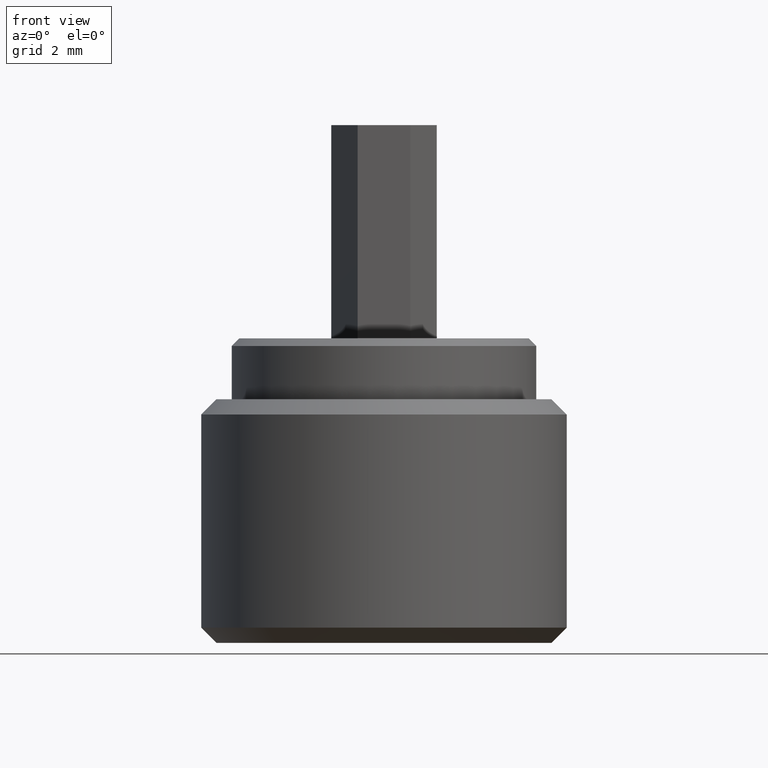
[diagram: clean part render]
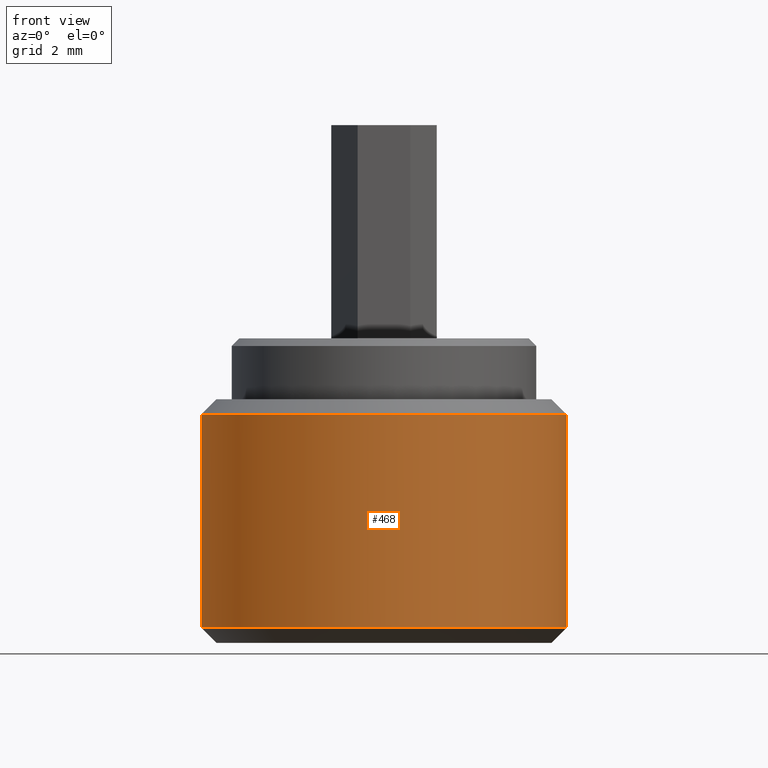
[diagram: same view with one face highlighted and labeled with its STEP entity id]
A machine part, front view. The second image highlights one B-rep face of the part: STEP entity #468.
In plain terms, the highlighted cylindrical surface (partial cylindrical patch) has radius 6 mm, axis along (-0, -0, -1).
Its self-contained STEP definition (entity closure, byte-faithful):
#13 = EDGE_CURVE ( 'NONE', #207, #218, #697, .T. ) ;
#23 = DIRECTION ( 'NONE',  ( -0.000000000000000000, -0.000000000000000000, -1.000000000000000000 ) ) ;
#51 = CARTESIAN_POINT ( 'NONE',  ( 0.000000000000000000, 0.000000000000000000, 0.4999999999999987232 ) ) ;
#84 = EDGE_LOOP ( 'NONE', ( #660, #497, #555, #944 ) ) ;
#161 = DIRECTION ( 'NONE',  ( -0.000000000000000000, -0.000000000000000000, 1.000000000000000000 ) ) ;
#175 = CARTESIAN_POINT ( 'NONE',  ( -6.000000000000000888, 0.000000000000000000, 0.4999999999999987232 ) ) ;
#183 = CARTESIAN_POINT ( 'NONE',  ( 0.000000000000000000, 0.000000000000000000, 7.500000000000000000 ) ) ;
#207 = VERTEX_POINT ( 'NONE', #613 ) ;
#218 = VERTEX_POINT ( 'NONE', #230 ) ;
#230 = CARTESIAN_POINT ( 'NONE',  ( -6.000000000000000888, 0.000000000000000000, 7.500000000000000000 ) ) ;
#233 = LINE ( 'NONE', #367, #509 ) ;
#331 = DIRECTION ( 'NONE',  ( 1.000000000000000000, 0.000000000000000000, 0.000000000000000000 ) ) ;
#367 = CARTESIAN_POINT ( 'NONE',  ( -6.000000000000000888, 0.000000000000000000, 10.00000000000000000 ) ) ;
#380 = DIRECTION ( 'NONE',  ( 1.000000000000000000, 0.000000000000000000, 0.000000000000000000 ) ) ;
#442 = DIRECTION ( 'NONE',  ( -0.000000000000000000, -0.000000000000000000, -1.000000000000000000 ) ) ;
#468 = ADVANCED_FACE ( 'NONE', ( #862 ), #853, .T. ) ;
#485 = CARTESIAN_POINT ( 'NONE',  ( 0.000000000000000000, 0.000000000000000000, 10.00000000000000000 ) ) ;
#492 = DIRECTION ( 'NONE',  ( -1.000000000000000000, 0.000000000000000000, 0.000000000000000000 ) ) ;
#497 = ORIENTED_EDGE ( 'NONE', *, *, #13, .T. ) ;
#506 = VERTEX_POINT ( 'NONE', #175 ) ;
#509 = VECTOR ( 'NONE', #762, 1000.000000000000000 ) ;
#555 = ORIENTED_EDGE ( 'NONE', *, *, #842, .T. ) ;
#565 = DIRECTION ( 'NONE',  ( -0.000000000000000000, -0.000000000000000000, -1.000000000000000000 ) ) ;
#579 = LINE ( 'NONE', #883, #974 ) ;
#589 = AXIS2_PLACEMENT_3D ( 'NONE', #51, #161, #380 ) ;
#613 = CARTESIAN_POINT ( 'NONE',  ( 6.000000000000000888, 7.347880794884120722E-16, 7.500000000000000000 ) ) ;
#660 = ORIENTED_EDGE ( 'NONE', *, *, #688, .F. ) ;
#688 = EDGE_CURVE ( 'NONE', #207, #759, #579, .T. ) ;
#697 = CIRCLE ( 'NONE', #912, 6.000000000000000888 ) ;
#759 = VERTEX_POINT ( 'NONE', #961 ) ;
#760 = AXIS2_PLACEMENT_3D ( 'NONE', #485, #23, #492 ) ;
#762 = DIRECTION ( 'NONE',  ( -0.000000000000000000, -0.000000000000000000, -1.000000000000000000 ) ) ;
#770 = CIRCLE ( 'NONE', #589, 6.000000000000000888 ) ;
#795 = EDGE_CURVE ( 'NONE', #506, #759, #770, .T. ) ;
#842 = EDGE_CURVE ( 'NONE', #218, #506, #233, .T. ) ;
#853 = CYLINDRICAL_SURFACE ( 'NONE', #760, 6.000000000000000888 ) ;
#862 = FACE_OUTER_BOUND ( 'NONE', #84, .T. ) ;
#883 = CARTESIAN_POINT ( 'NONE',  ( 6.000000000000000888, 7.347880794884120722E-16, 10.00000000000000000 ) ) ;
#912 = AXIS2_PLACEMENT_3D ( 'NONE', #183, #565, #331 ) ;
#944 = ORIENTED_EDGE ( 'NONE', *, *, #795, .T. ) ;
#961 = CARTESIAN_POINT ( 'NONE',  ( 6.000000000000000888, 7.347880794884120722E-16, 0.4999999999999987232 ) ) ;
#974 = VECTOR ( 'NONE', #442, 1000.000000000000000 ) ;